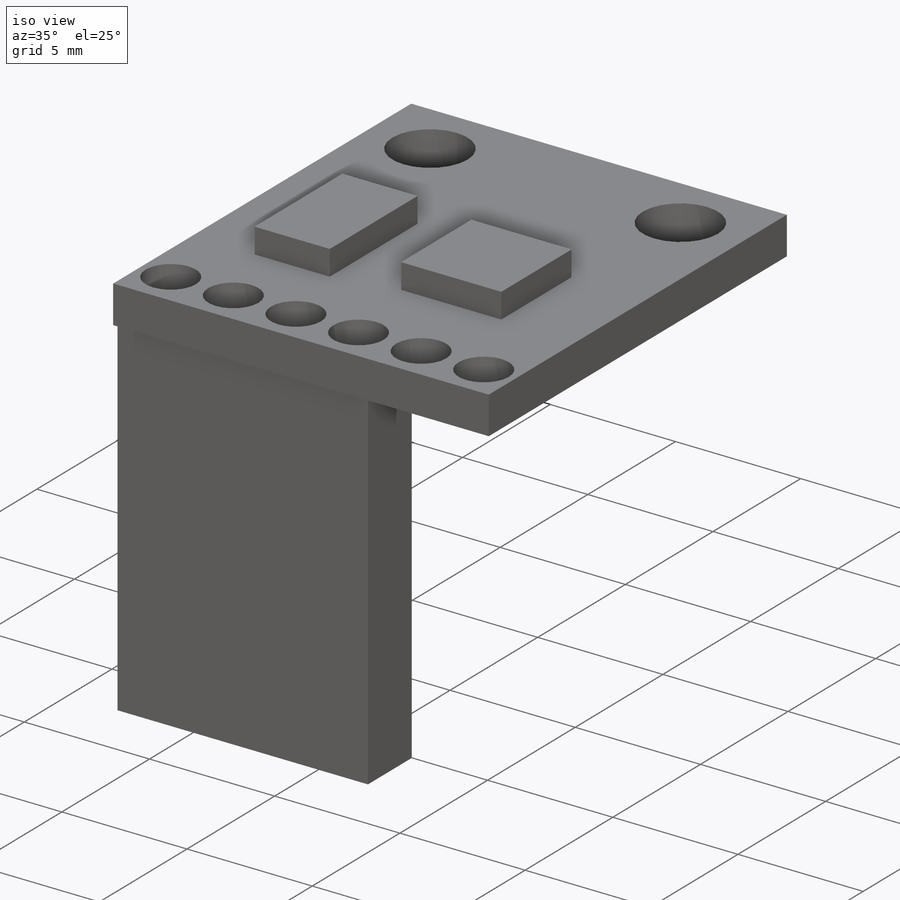
[diagram: iso view]
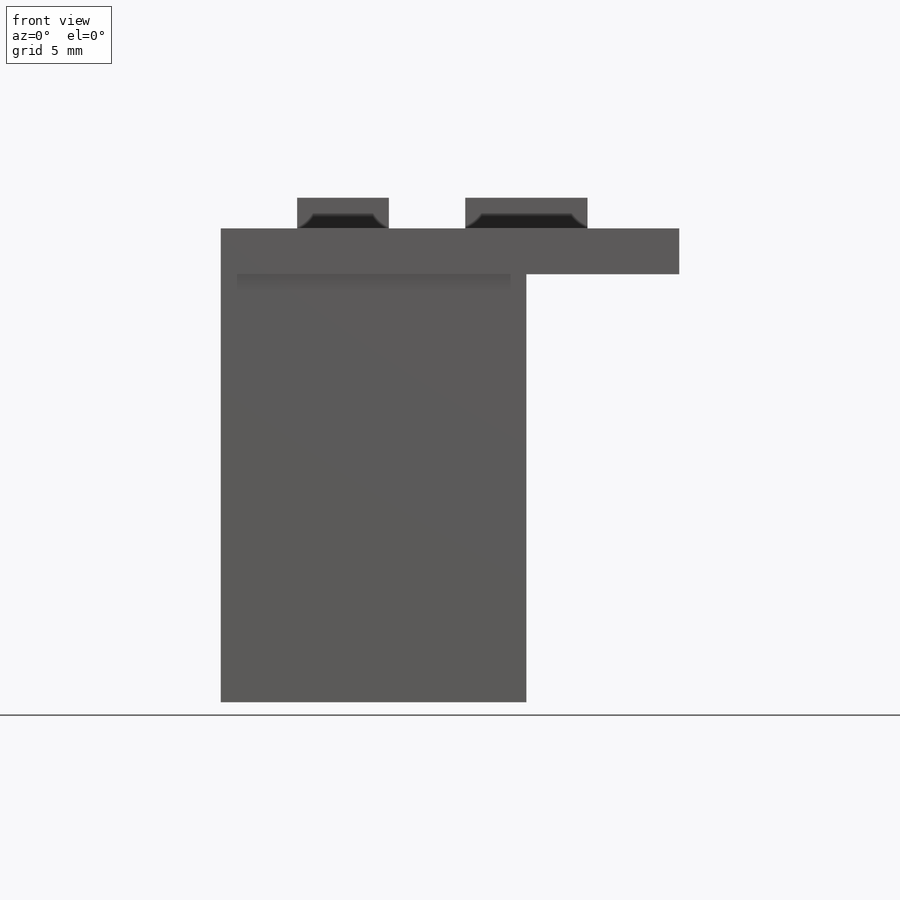
[diagram: front view]
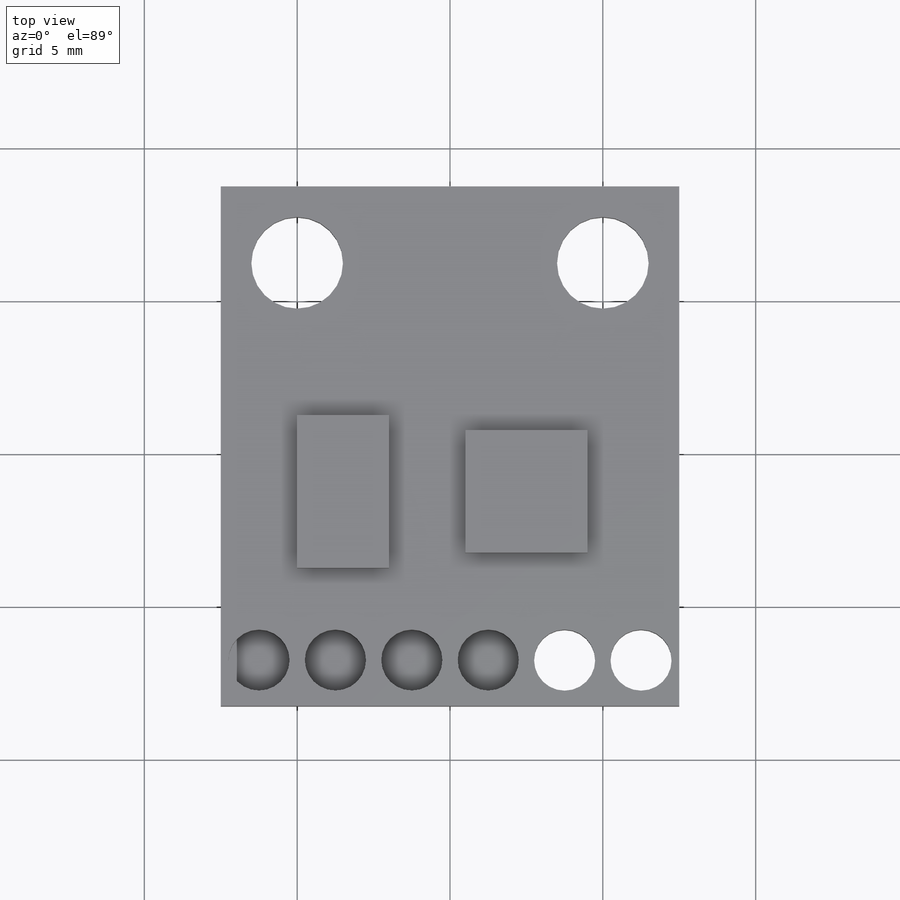
[diagram: top view]
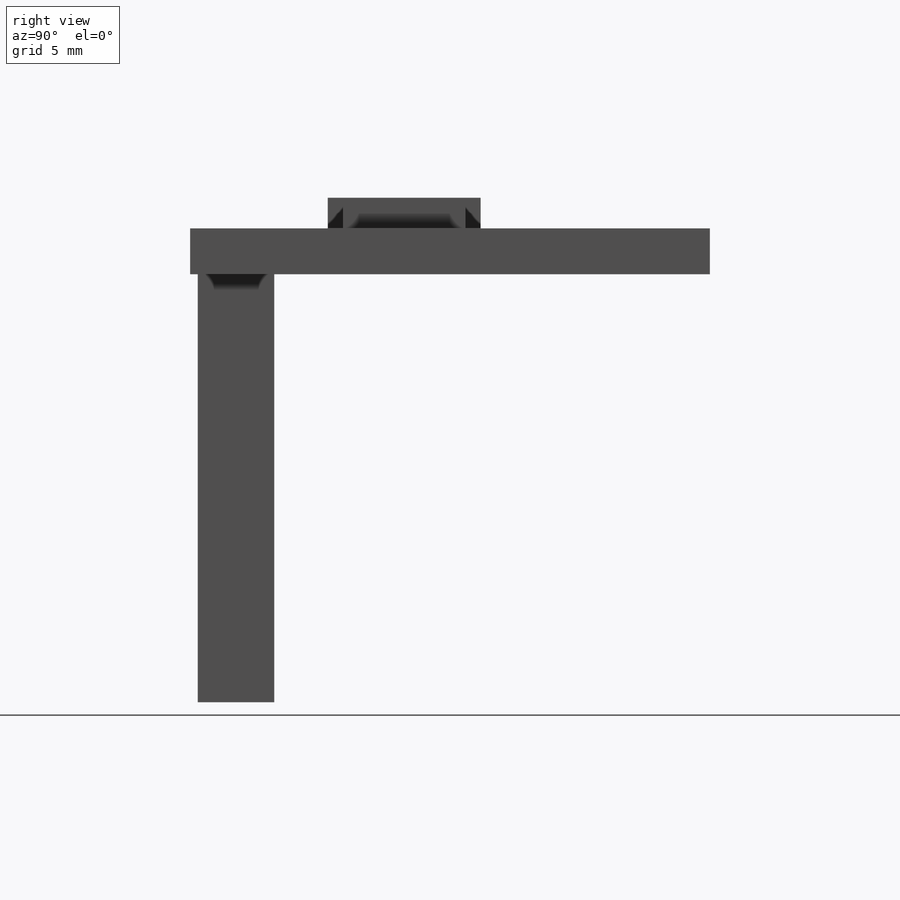
[diagram: right view]
SOLIDWORKS PART (.sldprt)
format: sldprt  version: not decoded by parser v0  size: 193,024 bytes
history: native  units: mm
features: plane x3, sketch x3, extrude x3, material x1 (+8 scaffold rows collapsed)
feature tree (18):
  scaffold x8  (default folders/planes/origin — collapsed)
  material  "Matériau <non spécifié>"
  plane  "Plan de face"
  plane  "Plan de dessus"
  plane  "Plan de droite"
  sketch  "Esquisse1"  dims[D8=3.0mm D10=3.0mm D13=2.0mm D1=15.0mm D2=17.0mm D3=7.5mm D4=8.5mm D5=5.0mm D6=10.0mm D7=2.5mm D9=2.5mm D11=1.5mm D12=1.25mm D14=6.0]
  extrude  "Boss.-Extru.1"  Depth=1.5mm
  sketch  "Esquisse2"  dims[D1=3.0mm D2=5.0mm D3=4.0mm D4=4.0mm D5=2.5mm D6=7.5mm D7=3.0mm D8=8.0mm]
  extrude  "Boss.-Extru.2"  Depth=1mm
  sketch  "Esquisse3"  dims[D1=2.5mm D2=10.0mm D3=0.25mm]
  extrude  "Boss.-Extru.3"  Depth=14mm
decode coverage: 6 of 6 modeling features carry decoded parameters
note: suppression state not decoded; provenance and decode notes live in map.json
